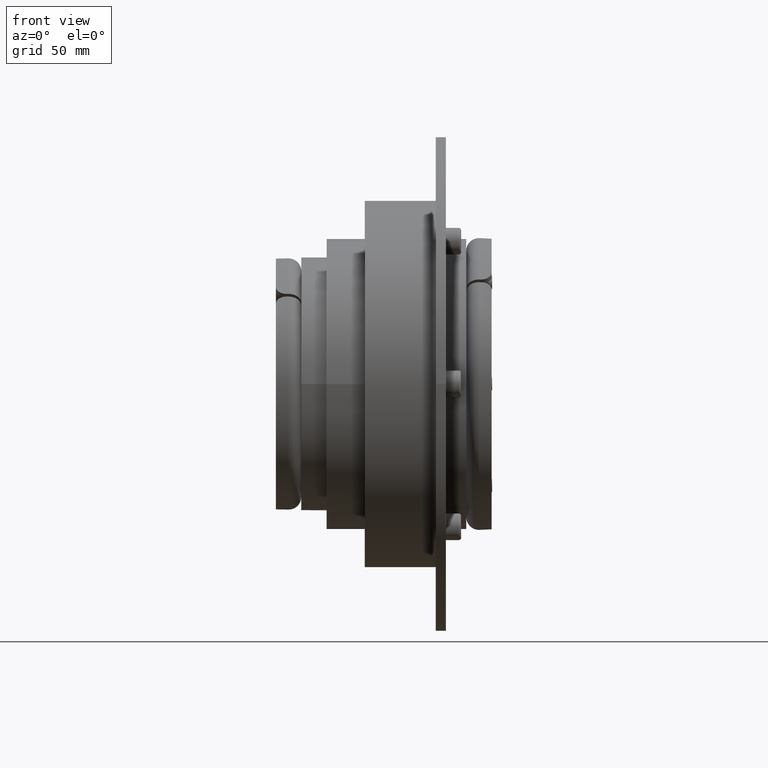
[diagram: clean part render]
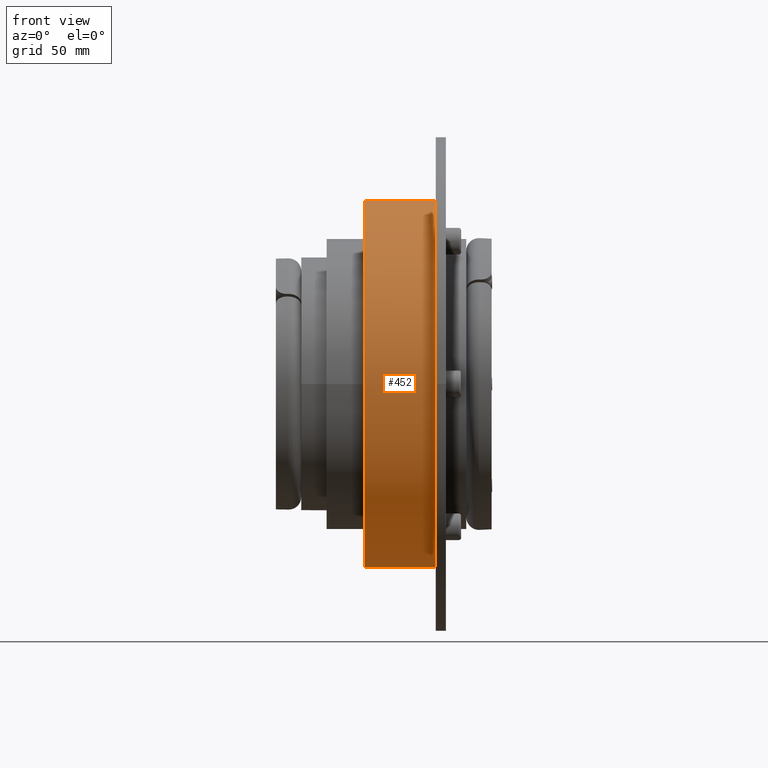
[diagram: same view with one face highlighted and labeled with its STEP entity id]
A machine part, front view. The second image highlights one B-rep face of the part: STEP entity #452.
In plain terms, the highlighted cylindrical surface (partial cylindrical patch) has radius 72.15 mm, axis along (-1, 0, 0).
Its self-contained STEP definition (entity closure, byte-faithful):
#411=CARTESIAN_POINT('',(4.0,0.0,0.0));
#412=DIRECTION('',(1.0,0.0,0.0));
#413=DIRECTION('',(0.0,0.0,1.0));
#414=AXIS2_PLACEMENT_3D('',#411,#412,#413);
#415=CYLINDRICAL_SURFACE('',#414,72.150000000000006);
#416=CARTESIAN_POINT('',(4.0,8.835535E-015,72.150000000000006));
#417=VERTEX_POINT('',#416);
#418=CARTESIAN_POINT('',(32.0,8.835535E-015,72.150000000000006));
#419=VERTEX_POINT('',#418);
#420=CARTESIAN_POINT('',(4.0,8.835535E-015,72.150000000000006));
#421=DIRECTION('',(1.0,0.0,0.0));
#422=VECTOR('',#421,28.0);
#423=LINE('',#420,#422);
#424=EDGE_CURVE('',#417,#419,#423,.T.);
#425=ORIENTED_EDGE('',*,*,#424,.F.);
#426=CARTESIAN_POINT('',(4.0,8.835535E-015,-72.150000000000006));
#427=VERTEX_POINT('',#426);
#428=CARTESIAN_POINT('',(4.0,0.0,0.0));
#429=DIRECTION('',(-1.0,0.0,0.0));
#430=DIRECTION('',(0.0,0.0,1.0));
#431=AXIS2_PLACEMENT_3D('',#428,#429,#430);
#432=CIRCLE('',#431,72.150000000000006);
#433=EDGE_CURVE('',#427,#417,#432,.T.);
#434=ORIENTED_EDGE('',*,*,#433,.F.);
#435=CARTESIAN_POINT('',(32.0,8.835535E-015,-72.150000000000006));
#436=VERTEX_POINT('',#435);
#437=CARTESIAN_POINT('',(32.0,8.835535E-015,-72.150000000000006));
#438=DIRECTION('',(-1.0,0.0,0.0));
#439=VECTOR('',#438,28.0);
#440=LINE('',#437,#439);
#441=EDGE_CURVE('',#436,#427,#440,.T.);
#442=ORIENTED_EDGE('',*,*,#441,.F.);
#443=CARTESIAN_POINT('',(32.0,0.0,0.0));
#444=DIRECTION('',(-1.0,0.0,0.0));
#445=DIRECTION('',(0.0,0.0,1.0));
#446=AXIS2_PLACEMENT_3D('',#443,#444,#445);
#447=CIRCLE('',#446,72.150000000000006);
#448=EDGE_CURVE('',#436,#419,#447,.T.);
#449=ORIENTED_EDGE('',*,*,#448,.T.);
#450=EDGE_LOOP('',(#425,#434,#442,#449));
#451=FACE_OUTER_BOUND('',#450,.T.);
#452=ADVANCED_FACE('',(#451),#415,.T.);